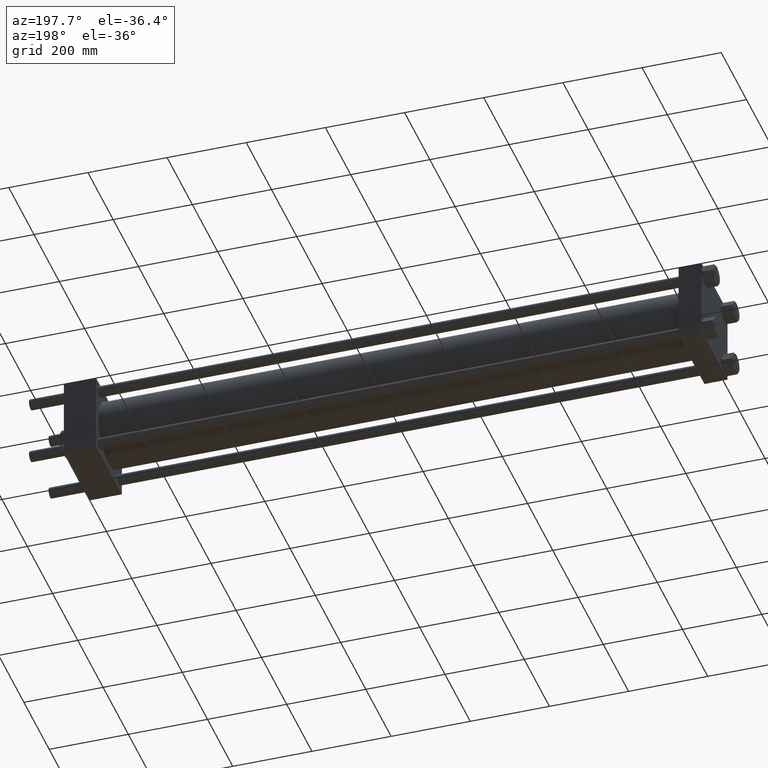
[diagram: clean part render]
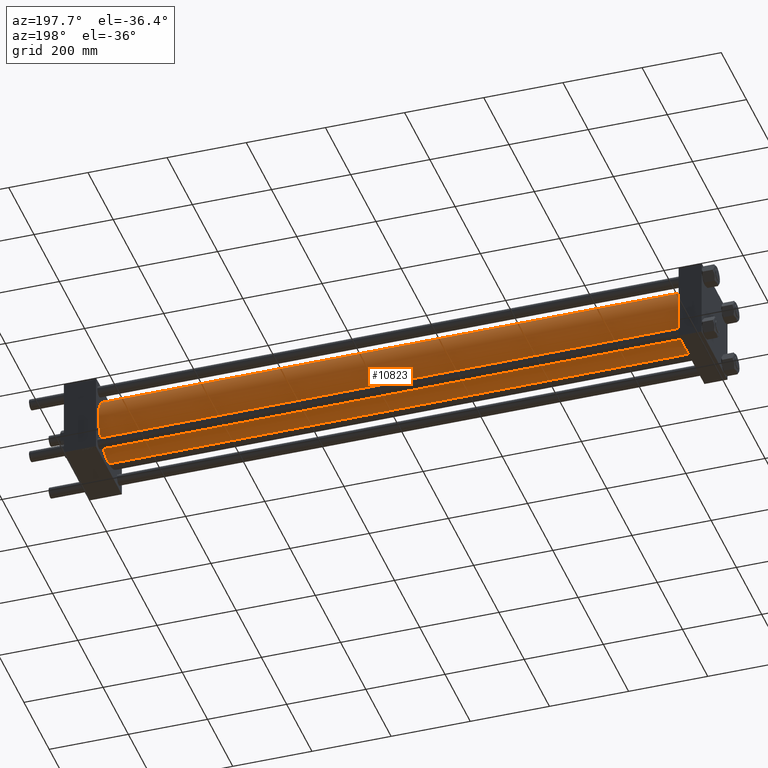
[diagram: same view with one face highlighted and labeled with its STEP entity id]
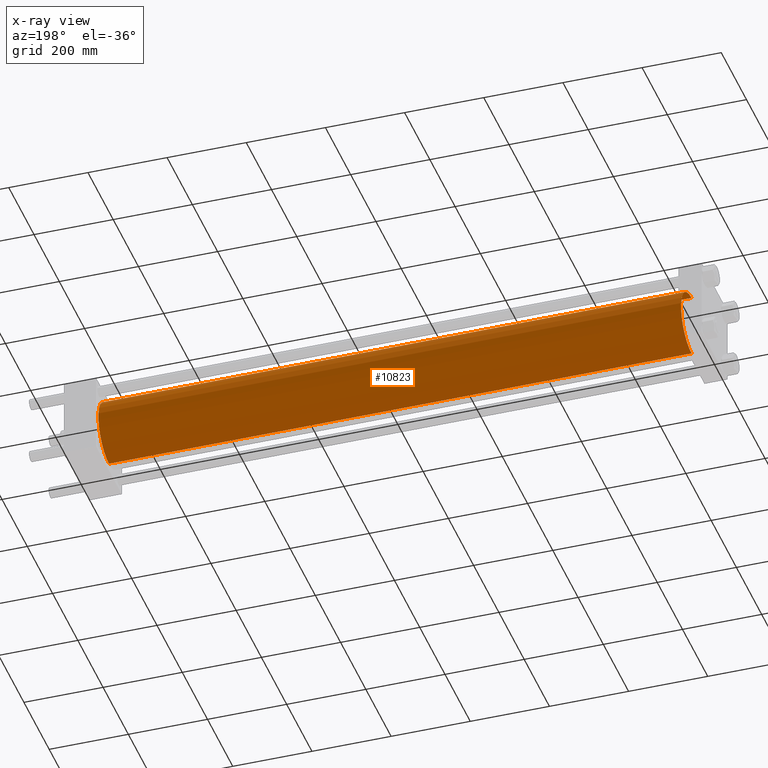
[diagram: x-ray of the same camera — body ghosted, the highlighted face saturated]
A machine part, auxiliary view. The second image highlights one B-rep face of the part: STEP entity #10823.
The next image is the same camera in x-ray: the body ghosted, the highlighted face saturated — about 0% of this face is hidden behind the body in this view.
In plain terms, the highlighted cylindrical surface (edge-blend (fillet) strip) has radius 83 mm, axis along (-1, -0, -0).
Its self-contained STEP definition (entity closure, byte-faithful):
#1757 = EDGE_LOOP ( 'NONE', ( #40903, #21222, #30455, #18505 ) ) ;
#4031 = CARTESIAN_POINT ( 'NONE',  ( 1530.000000000000000, -2.602085213965210642E-15, 0.000000000000000000 ) ) ;
#4953 = AXIS2_PLACEMENT_3D ( 'NONE', #4031, #8371, #39356 ) ;
#6181 = EDGE_CURVE ( 'NONE', #20009, #57229, #36334, .T. ) ;
#6503 = VERTEX_POINT ( 'NONE', #35233 ) ;
#7286 = CARTESIAN_POINT ( 'NONE',  ( 58.00000000000004974, -2.602085213965210642E-15, 0.000000000000000000 ) ) ;
#8371 = DIRECTION ( 'NONE',  ( 1.000000000000000000, 0.000000000000000000, 0.000000000000000000 ) ) ;
#8604 = EDGE_CURVE ( 'NONE', #23418, #6503, #23431, .T. ) ;
#10823 = ADVANCED_FACE ( 'NONE', ( #12101 ), #33549, .T. ) ;
#11957 = CARTESIAN_POINT ( 'NONE',  ( 1530.000000000000000, 7.562483218957820855E-15, -83.00000000000000000 ) ) ;
#12101 = FACE_OUTER_BOUND ( 'NONE', #1757, .T. ) ;
#17917 = DIRECTION ( 'NONE',  ( 1.000000000000000000, -0.000000000000000000, -0.000000000000000000 ) ) ;
#18505 = ORIENTED_EDGE ( 'NONE', *, *, #22836, .F. ) ;
#20009 = VERTEX_POINT ( 'NONE', #23195 ) ;
#21222 = ORIENTED_EDGE ( 'NONE', *, *, #28400, .T. ) ;
#22799 = CARTESIAN_POINT ( 'NONE',  ( 1530.000000000000000, 7.562483218957820855E-15, -83.00000000000000000 ) ) ;
#22836 = EDGE_CURVE ( 'NONE', #6503, #57229, #28469, .T. ) ;
#23195 = CARTESIAN_POINT ( 'NONE',  ( 58.00000000000004974, 7.562483218957820855E-15, -83.00000000000000000 ) ) ;
#23418 = VERTEX_POINT ( 'NONE', #11957 ) ;
#23431 = CIRCLE ( 'NONE', #4953, 83.00000000000000000 ) ;
#25146 = DIRECTION ( 'NONE',  ( -1.000000000000000000, -0.000000000000000000, -0.000000000000000000 ) ) ;
#28400 = EDGE_CURVE ( 'NONE', #23418, #20009, #48853, .T. ) ;
#28469 = LINE ( 'NONE', #49100, #53285 ) ;
#28759 = DIRECTION ( 'NONE',  ( -1.000000000000000000, -0.000000000000000000, -0.000000000000000000 ) ) ;
#30455 = ORIENTED_EDGE ( 'NONE', *, *, #6181, .T. ) ;
#33549 = CYLINDRICAL_SURFACE ( 'NONE', #46615, 83.00000000000000000 ) ;
#35233 = CARTESIAN_POINT ( 'NONE',  ( 1530.000000000000000, -2.602085213965210642E-15, 83.00000000000000000 ) ) ;
#36334 = CIRCLE ( 'NONE', #52935, 83.00000000000000000 ) ;
#39356 = DIRECTION ( 'NONE',  ( 0.000000000000000000, 0.000000000000000000, -1.000000000000000000 ) ) ;
#40177 = DIRECTION ( 'NONE',  ( -1.000000000000000000, -0.000000000000000000, -0.000000000000000000 ) ) ;
#40903 = ORIENTED_EDGE ( 'NONE', *, *, #8604, .F. ) ;
#43365 = CARTESIAN_POINT ( 'NONE',  ( 1530.000000000000000, -2.602085213965210642E-15, 0.000000000000000000 ) ) ;
#43527 = CARTESIAN_POINT ( 'NONE',  ( 58.00000000000004974, -2.602085213965210642E-15, 83.00000000000000000 ) ) ;
#46057 = VECTOR ( 'NONE', #40177, 1000.000000000000000 ) ;
#46615 = AXIS2_PLACEMENT_3D ( 'NONE', #43365, #25146, #56388 ) ;
#48853 = LINE ( 'NONE', #22799, #46057 ) ;
#49100 = CARTESIAN_POINT ( 'NONE',  ( 1530.000000000000000, -2.602085213965210642E-15, 83.00000000000000000 ) ) ;
#52935 = AXIS2_PLACEMENT_3D ( 'NONE', #7286, #17917, #56484 ) ;
#53285 = VECTOR ( 'NONE', #28759, 1000.000000000000000 ) ;
#56388 = DIRECTION ( 'NONE',  ( 0.000000000000000000, 0.000000000000000000, 1.000000000000000000 ) ) ;
#56484 = DIRECTION ( 'NONE',  ( 0.000000000000000000, 0.000000000000000000, 1.000000000000000000 ) ) ;
#57229 = VERTEX_POINT ( 'NONE', #43527 ) ;